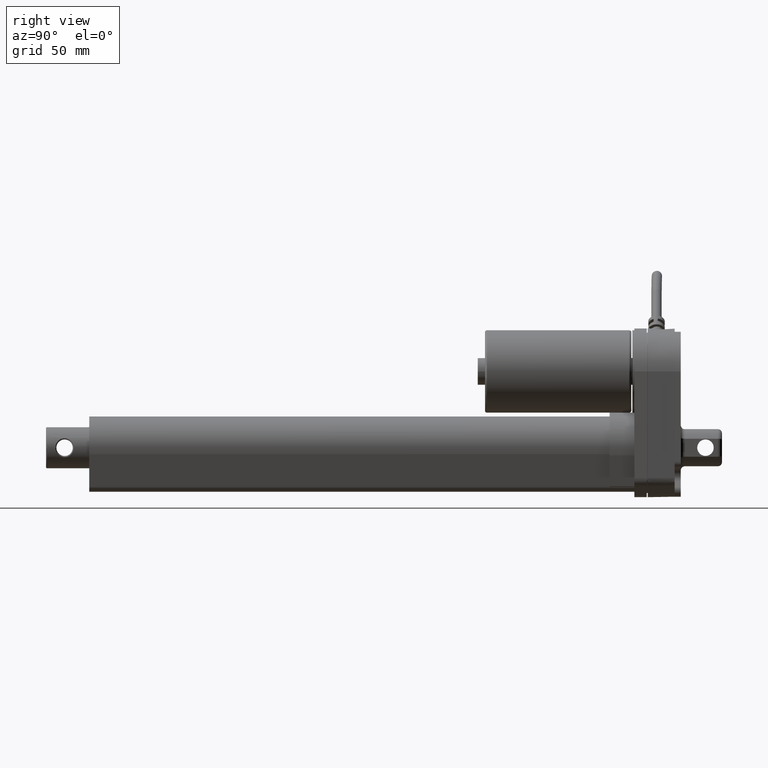
[diagram: clean part render]
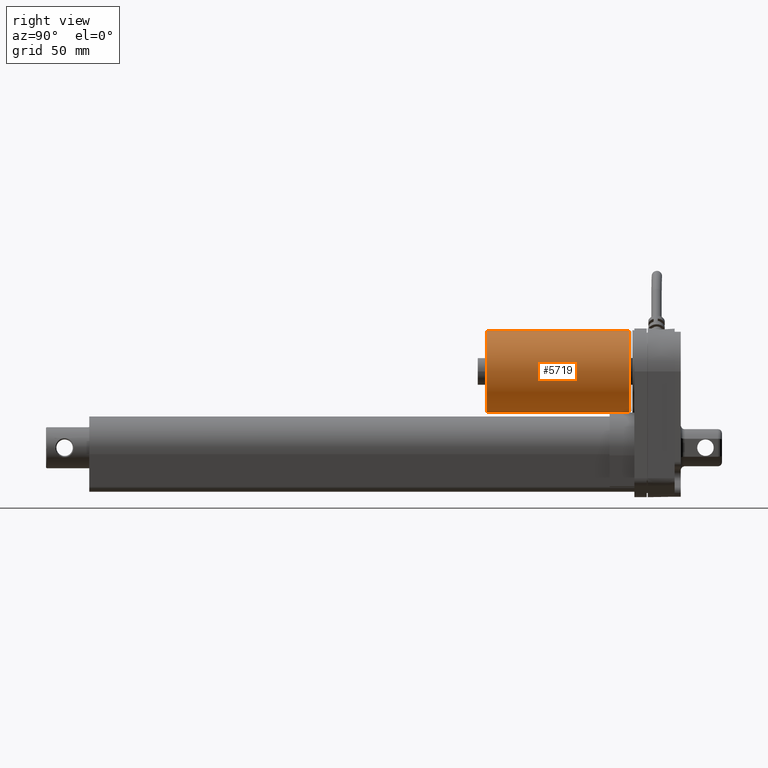
[diagram: same view with one face highlighted and labeled with its STEP entity id]
A machine part, right view. The second image highlights one B-rep face of the part: STEP entity #5719.
In plain terms, the highlighted cylindrical surface (bore or boss wall) has radius 20 mm, axis along (0, -1, 0).
Its self-contained STEP definition (entity closure, byte-faithful):
#96=B_SPLINE_CURVE_WITH_KNOTS('',3,(#10877,#10878,#10879,#10880,#10881,
#10882,#10883,#10884,#10885,#10886,#10887),.UNSPECIFIED.,.F.,.F.,(4,1,1,
1,1,1,1,1,4),(0.,0.125,0.25,0.375,0.5,0.625,0.75,0.875,1.),
 .UNSPECIFIED.);
#99=B_SPLINE_CURVE_WITH_KNOTS('',3,(#10912,#10913,#10914,#10915,#10916,
#10917,#10918,#10919,#10920,#10921,#10922),.UNSPECIFIED.,.F.,.F.,(4,1,1,
1,1,1,1,1,4),(0.,0.125,0.25,0.375,0.5,0.625,0.75,0.875,1.),
 .UNSPECIFIED.);
#2588=ORIENTED_EDGE('',*,*,#3551,.F.);
#2589=ORIENTED_EDGE('',*,*,#3546,.F.);
#2590=ORIENTED_EDGE('',*,*,#3552,.T.);
#3546=EDGE_CURVE('',#4134,#4135,#96,.F.);
#3551=EDGE_CURVE('',#4135,#4134,#99,.F.);
#3552=EDGE_CURVE('',#4139,#4139,#4478,.T.);
#4134=VERTEX_POINT('',#10876);
#4135=VERTEX_POINT('',#10888);
#4139=VERTEX_POINT('',#10924);
#4478=CIRCLE('',#6370,20.0000000000013);
#4840=EDGE_LOOP('',(#2588,#2589));
#4841=EDGE_LOOP('',(#2590));
#5239=FACE_BOUND('',#4840,.T.);
#5240=FACE_BOUND('',#4841,.T.);
#5433=CYLINDRICAL_SURFACE('',#6369,20.);
#5719=ADVANCED_FACE('',(#5239,#5240),#5433,.T.);
#6369=AXIS2_PLACEMENT_3D('',#10911,#7865,#7866);
#6370=AXIS2_PLACEMENT_3D('',#10923,#7867,#7868);
#7865=DIRECTION('',(0.,0.,1.));
#7866=DIRECTION('',(1.,0.,0.));
#7867=DIRECTION('',(0.,-1.83690953080001E-16,-1.));
#7868=DIRECTION('',(0.00804775554602046,-0.999967616290984,3.46944695195339E-16));
#10876=CARTESIAN_POINT('',(0.237791451914524,-19.9985863306734,-34.5));
#10877=CARTESIAN_POINT('',(-0.23779145191453,19.9985863306734,-34.5));
#10878=CARTESIAN_POINT('',(-2.8556002810239,19.9674595024058,-34.5));
#10879=CARTESIAN_POINT('',(-8.07761621833867,18.8639313952722,-34.5));
#10880=CARTESIAN_POINT('',(-14.6818527036886,14.336765309319,-34.5));
#10881=CARTESIAN_POINT('',(-19.050652707231,7.62695972989257,-34.5));
#10882=CARTESIAN_POINT('',(-20.5192371018364,-0.243982204639149,-34.5));
#10883=CARTESIAN_POINT('',(-18.8639168694637,-8.07777962282312,-34.5));
#10884=CARTESIAN_POINT('',(-14.3368098666894,-14.6818091934782,-34.5));
#10885=CARTESIAN_POINT('',(-7.62679602621958,-19.0506633435885,-34.5));
#10886=CARTESIAN_POINT('',(-2.38001737719484,-20.0297131589409,-34.5));
#10887=CARTESIAN_POINT('',(0.237791451914524,-19.9985863306734,-34.5));
#10888=CARTESIAN_POINT('',(-0.237791451914526,19.9985863306734,-34.5));
#10911=CARTESIAN_POINT('',(0.,0.,-34.5));
#10912=CARTESIAN_POINT('',(0.237791451914524,-19.9985863306734,-34.5));
#10913=CARTESIAN_POINT('',(2.85560028102389,-19.9674595024058,-34.5));
#10914=CARTESIAN_POINT('',(8.07761621833864,-18.8639313952722,-34.5));
#10915=CARTESIAN_POINT('',(14.6818527036886,-14.336765309319,-34.5));
#10916=CARTESIAN_POINT('',(19.050652707231,-7.62695972989258,-34.5));
#10917=CARTESIAN_POINT('',(20.5192371018364,0.243982204639147,-34.5));
#10918=CARTESIAN_POINT('',(18.8639168694637,8.07777962282313,-34.5));
#10919=CARTESIAN_POINT('',(14.3368098666894,14.6818091934782,-34.5));
#10920=CARTESIAN_POINT('',(7.62679602621958,19.0506633435885,-34.5));
#10921=CARTESIAN_POINT('',(2.38001737719484,20.0297131589409,-34.5));
#10922=CARTESIAN_POINT('',(-0.237791451914521,19.9985863306734,-34.5));
#10923=CARTESIAN_POINT('',(0.,1.625664934699E-14,34.5));
#10924=CARTESIAN_POINT('',(0.16095511092042,-19.999352325821,34.5));